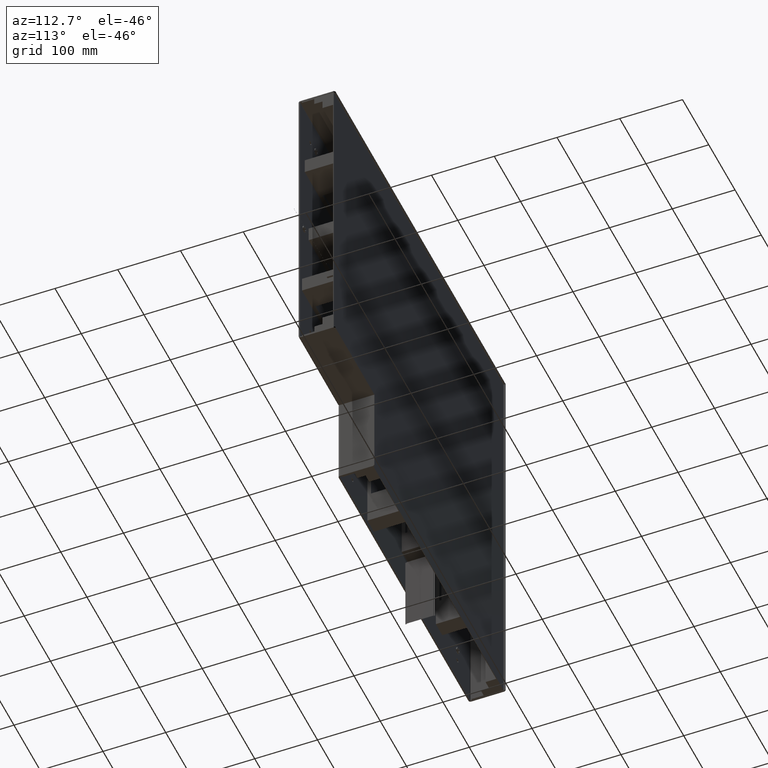
[diagram: clean part render]
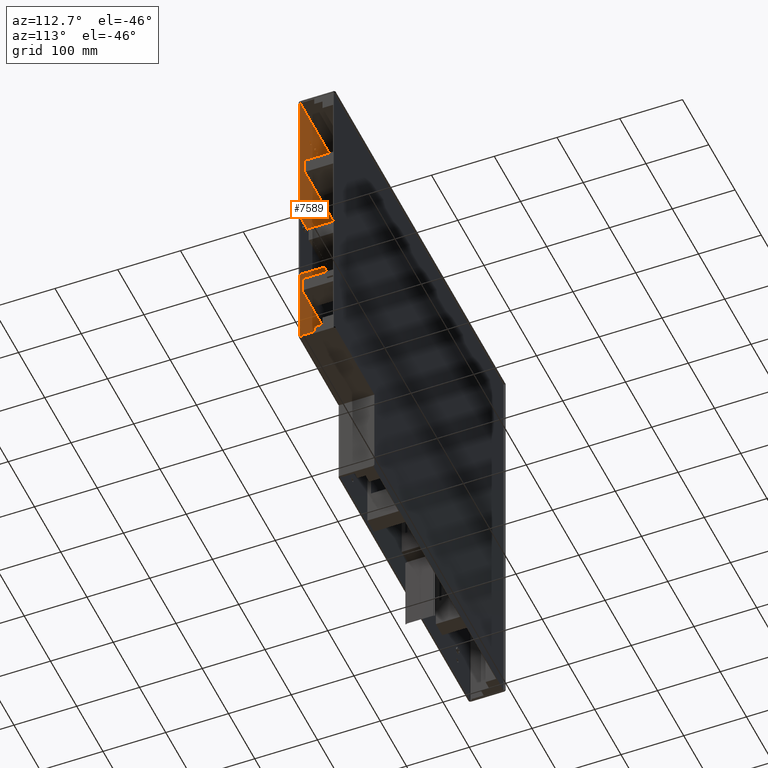
[diagram: same view with one face highlighted and labeled with its STEP entity id]
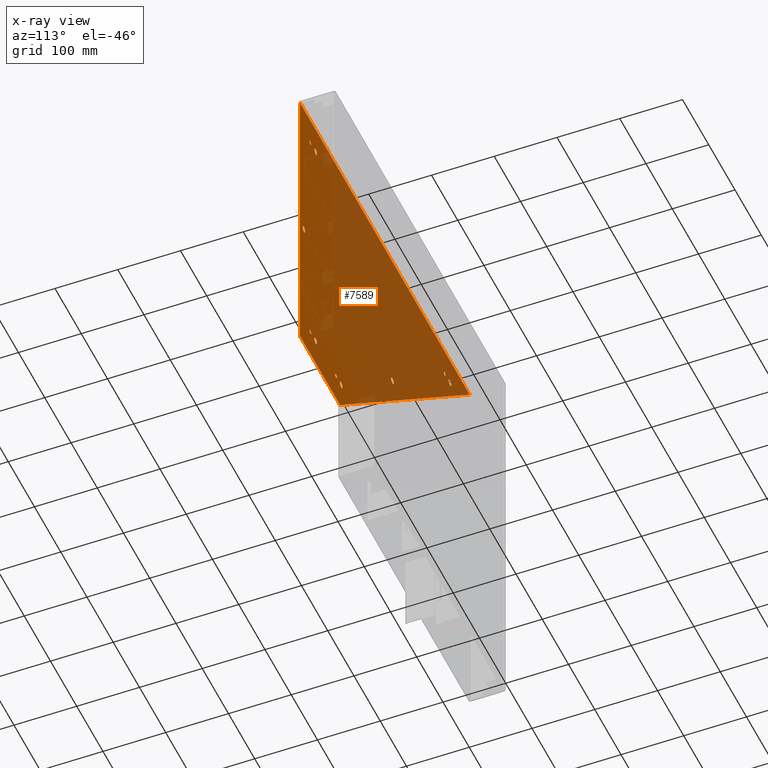
[diagram: x-ray of the same camera — body ghosted, the highlighted face saturated]
A machine part, auxiliary view. The second image highlights one B-rep face of the part: STEP entity #7589.
The next image is the same camera in x-ray: the body ghosted, the highlighted face saturated — about 69% of this face is hidden behind the body in this view.
In plain terms, the highlighted planar face has unit normal (0, -1, 0).
Its self-contained STEP definition (entity closure, byte-faithful):
#5192=DIRECTION('',(0.E0,0.E0,1.E0));
#5193=VECTOR('',#5192,6.47E2);
#5194=CARTESIAN_POINT('',(2.47E2,2.E0,0.E0));
#5195=LINE('',#5194,#5193);
#5451=DIRECTION('',(-1.E0,0.E0,0.E0));
#5452=VECTOR('',#5451,4.94E2);
#5453=CARTESIAN_POINT('',(2.47E2,2.E0,0.E0));
#5454=LINE('',#5453,#5452);
#5479=DIRECTION('',(7.071067811865E-1,0.E0,7.071067811865E-1));
#5480=VECTOR('',#5479,6.986214998123E2);
#5481=CARTESIAN_POINT('',(-2.47E2,2.E0,1.53E2));
#5482=LINE('',#5481,#5480);
#5486=DIRECTION('',(0.E0,0.E0,1.E0));
#5487=VECTOR('',#5486,3.E0);
#5488=CARTESIAN_POINT('',(-2.47E2,2.E0,1.5E2));
#5489=LINE('',#5488,#5487);
#5493=CARTESIAN_POINT('',(2.E2,2.E0,6.E1));
#5494=DIRECTION('',(0.E0,-1.E0,0.E0));
#5495=DIRECTION('',(2.054153971104E-9,0.E0,-1.E0));
#5496=AXIS2_PLACEMENT_3D('',#5493,#5494,#5495);
#5501=CARTESIAN_POINT('',(2.E2,2.E0,6.E1));
#5502=DIRECTION('',(0.E0,-1.E0,0.E0));
#5503=DIRECTION('',(-2.054153971104E-9,0.E0,1.E0));
#5504=AXIS2_PLACEMENT_3D('',#5501,#5502,#5503);
#5509=CARTESIAN_POINT('',(-7.E0,2.E0,1.5E1));
#5510=DIRECTION('',(0.E0,-1.E0,0.E0));
#5511=DIRECTION('',(2.054154493561E-9,0.E0,-1.E0));
#5512=AXIS2_PLACEMENT_3D('',#5509,#5510,#5511);
#5517=CARTESIAN_POINT('',(-7.E0,2.E0,1.5E1));
#5518=DIRECTION('',(0.E0,-1.E0,0.E0));
#5519=DIRECTION('',(-2.054154667714E-9,0.E0,1.E0));
#5520=AXIS2_PLACEMENT_3D('',#5517,#5518,#5519);
#5525=CARTESIAN_POINT('',(-2.E2,2.E0,6.E1));
#5526=DIRECTION('',(0.E0,-1.E0,0.E0));
#5527=DIRECTION('',(1.E0,0.E0,2.054155364325E-9));
#5528=AXIS2_PLACEMENT_3D('',#5525,#5526,#5527);
#5533=CARTESIAN_POINT('',(-2.E2,2.E0,6.E1));
#5534=DIRECTION('',(0.E0,-1.E0,0.E0));
#5535=DIRECTION('',(-1.E0,0.E0,-2.054155364325E-9));
#5536=AXIS2_PLACEMENT_3D('',#5533,#5534,#5535);
#5541=CARTESIAN_POINT('',(-2.E2,2.E0,1.575735931288E2));
#5542=DIRECTION('',(0.E0,-1.E0,0.E0));
#5543=DIRECTION('',(1.E0,0.E0,2.054153971104E-9));
#5544=AXIS2_PLACEMENT_3D('',#5541,#5542,#5543);
#5549=CARTESIAN_POINT('',(-2.E2,2.E0,1.575735931288E2));
#5550=DIRECTION('',(0.E0,-1.E0,0.E0));
#5551=DIRECTION('',(-1.E0,0.E0,-2.054148398219E-9));
#5552=AXIS2_PLACEMENT_3D('',#5549,#5550,#5551);
#5557=CARTESIAN_POINT('',(-5.E0,2.E0,3.525735931288E2));
#5558=DIRECTION('',(0.E0,-1.E0,0.E0));
#5559=DIRECTION('',(1.E0,0.E0,2.054165116872E-9));
#5560=AXIS2_PLACEMENT_3D('',#5557,#5558,#5559);
#5565=CARTESIAN_POINT('',(-5.E0,2.E0,3.525735931288E2));
#5566=DIRECTION('',(0.E0,-1.E0,0.E0));
#5567=DIRECTION('',(-1.E0,0.E0,-2.054153971104E-9));
#5568=AXIS2_PLACEMENT_3D('',#5565,#5566,#5567);
#5573=CARTESIAN_POINT('',(2.E2,2.E0,5.717157287525E2));
#5574=DIRECTION('',(0.E0,-1.E0,0.E0));
#5575=DIRECTION('',(1.E0,0.E0,2.054142825335E-9));
#5576=AXIS2_PLACEMENT_3D('',#5573,#5574,#5575);
#5581=CARTESIAN_POINT('',(2.E2,2.E0,5.717157287525E2));
#5582=DIRECTION('',(0.E0,-1.E0,0.E0));
#5583=DIRECTION('',(-1.E0,0.E0,-2.054142825335E-9));
#5584=AXIS2_PLACEMENT_3D('',#5581,#5582,#5583);
#5589=CARTESIAN_POINT('',(-2.E2,2.E0,1.375735931288E2));
#5590=DIRECTION('',(0.E0,1.E0,0.E0));
#5591=DIRECTION('',(0.E0,0.E0,1.E0));
#5592=AXIS2_PLACEMENT_3D('',#5589,#5590,#5591);
#5597=CARTESIAN_POINT('',(-2.E2,2.E0,1.375735931288E2));
#5598=DIRECTION('',(0.E0,1.E0,0.E0));
#5599=DIRECTION('',(0.E0,0.E0,-1.E0));
#5600=AXIS2_PLACEMENT_3D('',#5597,#5598,#5599);
#5605=CARTESIAN_POINT('',(-2.E2,2.E0,4.E1));
#5606=DIRECTION('',(0.E0,1.E0,0.E0));
#5607=DIRECTION('',(0.E0,0.E0,1.E0));
#5608=AXIS2_PLACEMENT_3D('',#5605,#5606,#5607);
#5613=CARTESIAN_POINT('',(-2.E2,2.E0,4.E1));
#5614=DIRECTION('',(0.E0,1.E0,0.E0));
#5615=DIRECTION('',(0.E0,0.E0,-1.E0));
#5616=AXIS2_PLACEMENT_3D('',#5613,#5614,#5615);
#5621=CARTESIAN_POINT('',(2.E2,2.E0,4.E1));
#5622=DIRECTION('',(0.E0,1.E0,0.E0));
#5623=DIRECTION('',(0.E0,0.E0,1.E0));
#5624=AXIS2_PLACEMENT_3D('',#5621,#5622,#5623);
#5629=CARTESIAN_POINT('',(2.E2,2.E0,4.E1));
#5630=DIRECTION('',(0.E0,1.E0,0.E0));
#5631=DIRECTION('',(0.E0,0.E0,-1.E0));
#5632=AXIS2_PLACEMENT_3D('',#5629,#5630,#5631);
#5637=CARTESIAN_POINT('',(2.E2,2.E0,5.517157287525E2));
#5638=DIRECTION('',(0.E0,1.E0,0.E0));
#5639=DIRECTION('',(0.E0,0.E0,1.E0));
#5640=AXIS2_PLACEMENT_3D('',#5637,#5638,#5639);
#5645=CARTESIAN_POINT('',(2.E2,2.E0,5.517157287525E2));
#5646=DIRECTION('',(0.E0,1.E0,0.E0));
#5647=DIRECTION('',(0.E0,0.E0,-1.E0));
#5648=AXIS2_PLACEMENT_3D('',#5645,#5646,#5647);
#5653=CARTESIAN_POINT('',(-2.E2,2.E0,9.3E1));
#5654=DIRECTION('',(0.E0,1.E0,0.E0));
#5655=DIRECTION('',(0.E0,0.E0,-1.E0));
#5656=AXIS2_PLACEMENT_3D('',#5653,#5654,#5655);
#5661=CARTESIAN_POINT('',(-2.E2,2.E0,9.3E1));
#5662=DIRECTION('',(0.E0,1.E0,0.E0));
#5663=DIRECTION('',(0.E0,0.E0,1.E0));
#5664=AXIS2_PLACEMENT_3D('',#5661,#5662,#5663);
#5669=CARTESIAN_POINT('',(-2.5E1,2.E0,3.255025253169E2));
#5670=DIRECTION('',(0.E0,1.E0,0.E0));
#5671=DIRECTION('',(0.E0,0.E0,-1.E0));
#5672=AXIS2_PLACEMENT_3D('',#5669,#5670,#5671);
#5677=CARTESIAN_POINT('',(-2.5E1,2.E0,3.255025253169E2));
#5678=DIRECTION('',(0.E0,1.E0,0.E0));
#5679=DIRECTION('',(0.E0,0.E0,1.E0));
#5680=AXIS2_PLACEMENT_3D('',#5677,#5678,#5679);
#5685=CARTESIAN_POINT('',(2.E2,2.E0,5.13E2));
#5686=DIRECTION('',(0.E0,1.E0,0.E0));
#5687=DIRECTION('',(0.E0,0.E0,-1.E0));
#5688=AXIS2_PLACEMENT_3D('',#5685,#5686,#5687);
#5693=CARTESIAN_POINT('',(2.E2,2.E0,5.13E2));
#5694=DIRECTION('',(0.E0,1.E0,0.E0));
#5695=DIRECTION('',(0.E0,0.E0,1.E0));
#5696=AXIS2_PLACEMENT_3D('',#5693,#5694,#5695);
#5701=CARTESIAN_POINT('',(2.E2,2.E0,9.3E1));
#5702=DIRECTION('',(0.E0,1.E0,0.E0));
#5703=DIRECTION('',(0.E0,0.E0,-1.E0));
#5704=AXIS2_PLACEMENT_3D('',#5701,#5702,#5703);
#5709=CARTESIAN_POINT('',(2.E2,2.E0,9.3E1));
#5710=DIRECTION('',(0.E0,1.E0,0.E0));
#5711=DIRECTION('',(0.E0,0.E0,1.E0));
#5712=AXIS2_PLACEMENT_3D('',#5709,#5710,#5711);
#5777=DIRECTION('',(0.E0,0.E0,1.E0));
#5778=VECTOR('',#5777,1.5E2);
#5779=CARTESIAN_POINT('',(-2.47E2,2.E0,0.E0));
#5780=LINE('',#5779,#5778);
#6881=CARTESIAN_POINT('',(2.47E2,2.E0,0.E0));
#6882=CARTESIAN_POINT('',(-2.47E2,2.E0,0.E0));
#6883=VERTEX_POINT('',#6881);
#6884=VERTEX_POINT('',#6882);
#6909=CARTESIAN_POINT('',(2.000000000105E2,2.E0,5.49E1));
#6910=CARTESIAN_POINT('',(1.999999999895E2,2.E0,6.51E1));
#6911=VERTEX_POINT('',#6909);
#6912=VERTEX_POINT('',#6910);
#6925=CARTESIAN_POINT('',(-6.999999989524E0,2.E0,9.9E0));
#6926=CARTESIAN_POINT('',(-7.000000010476E0,2.E0,2.01E1));
#6927=VERTEX_POINT('',#6925);
#6928=VERTEX_POINT('',#6926);
#6933=CARTESIAN_POINT('',(-2.47E2,2.E0,1.53E2));
#6934=CARTESIAN_POINT('',(2.47E2,2.E0,6.47E2));
#6935=VERTEX_POINT('',#6933);
#6936=VERTEX_POINT('',#6934);
#6965=CARTESIAN_POINT('',(-1.949E2,2.E0,6.000000001048E1));
#6966=CARTESIAN_POINT('',(-2.051E2,2.E0,5.999999998952E1));
#6967=VERTEX_POINT('',#6965);
#6968=VERTEX_POINT('',#6966);
#6989=CARTESIAN_POINT('',(-1.949E2,2.E0,1.575735931393E2));
#6990=CARTESIAN_POINT('',(-2.051E2,2.E0,1.575735931183E2));
#6991=VERTEX_POINT('',#6989);
#6992=VERTEX_POINT('',#6990);
#7013=CARTESIAN_POINT('',(1.E-1,2.E0,3.525735931393E2));
#7014=CARTESIAN_POINT('',(-1.01E1,2.E0,3.525735931183E2));
#7015=VERTEX_POINT('',#7013);
#7016=VERTEX_POINT('',#7014);
#7033=CARTESIAN_POINT('',(2.051E2,2.E0,5.717157287630E2));
#7034=CARTESIAN_POINT('',(1.949E2,2.E0,5.717157287421E2));
#7035=VERTEX_POINT('',#7033);
#7036=VERTEX_POINT('',#7034);
#7043=CARTESIAN_POINT('',(-2.47E2,2.E0,1.5E2));
#7044=VERTEX_POINT('',#7043);
#7077=CARTESIAN_POINT('',(2.E2,2.E0,5.549657287525E2));
#7078=CARTESIAN_POINT('',(2.E2,2.E0,5.484657287525E2));
#7079=VERTEX_POINT('',#7077);
#7080=VERTEX_POINT('',#7078);
#7081=CARTESIAN_POINT('',(2.E2,2.E0,4.325E1));
#7082=CARTESIAN_POINT('',(2.E2,2.E0,3.675E1));
#7083=VERTEX_POINT('',#7081);
#7084=VERTEX_POINT('',#7082);
#7085=CARTESIAN_POINT('',(-2.E2,2.E0,4.325E1));
#7086=CARTESIAN_POINT('',(-2.E2,2.E0,3.675E1));
#7087=VERTEX_POINT('',#7085);
#7088=VERTEX_POINT('',#7086);
#7089=CARTESIAN_POINT('',(-2.E2,2.E0,1.408235931288E2));
#7090=CARTESIAN_POINT('',(-2.E2,2.E0,1.343235931288E2));
#7091=VERTEX_POINT('',#7089);
#7092=VERTEX_POINT('',#7090);
#7133=CARTESIAN_POINT('',(2.E2,2.E0,9.295E1));
#7134=CARTESIAN_POINT('',(2.E2,2.E0,9.305E1));
#7135=VERTEX_POINT('',#7133);
#7136=VERTEX_POINT('',#7134);
#7137=CARTESIAN_POINT('',(2.E2,2.E0,5.1295E2));
#7138=CARTESIAN_POINT('',(2.E2,2.E0,5.1305E2));
#7139=VERTEX_POINT('',#7137);
#7140=VERTEX_POINT('',#7138);
#7141=CARTESIAN_POINT('',(-2.5E1,2.E0,3.254525253169E2));
#7142=CARTESIAN_POINT('',(-2.5E1,2.E0,3.255525253169E2));
#7143=VERTEX_POINT('',#7141);
#7144=VERTEX_POINT('',#7142);
#7145=CARTESIAN_POINT('',(-2.E2,2.E0,9.295E1));
#7146=CARTESIAN_POINT('',(-2.E2,2.E0,9.305E1));
#7147=VERTEX_POINT('',#7145);
#7148=VERTEX_POINT('',#7146);
#7491=CARTESIAN_POINT('',(0.E0,2.E0,0.E0));
#7492=DIRECTION('',(0.E0,-1.E0,0.E0));
#7493=DIRECTION('',(1.E0,0.E0,0.E0));
#7494=AXIS2_PLACEMENT_3D('',#7491,#7492,#7493);
#7495=PLANE('',#7494);
#7496=ORIENTED_EDGE('',*,*,#7371,.F.);
#7498=ORIENTED_EDGE('',*,*,#7497,.F.);
#7500=ORIENTED_EDGE('',*,*,#7499,.F.);
#7501=ORIENTED_EDGE('',*,*,#7482,.F.);
#7502=ORIENTED_EDGE('',*,*,#7342,.T.);
#7503=EDGE_LOOP('',(#7496,#7498,#7500,#7501,#7502));
#7504=FACE_OUTER_BOUND('',#7503,.F.);
#7506=ORIENTED_EDGE('',*,*,#7505,.F.);
#7508=ORIENTED_EDGE('',*,*,#7507,.F.);
#7509=EDGE_LOOP('',(#7506,#7508));
#7510=FACE_BOUND('',#7509,.F.);
#7512=ORIENTED_EDGE('',*,*,#7511,.F.);
#7514=ORIENTED_EDGE('',*,*,#7513,.F.);
#7515=EDGE_LOOP('',(#7512,#7514));
#7516=FACE_BOUND('',#7515,.F.);
#7518=ORIENTED_EDGE('',*,*,#7517,.F.);
#7520=ORIENTED_EDGE('',*,*,#7519,.F.);
#7521=EDGE_LOOP('',(#7518,#7520));
#7522=FACE_BOUND('',#7521,.F.);
#7524=ORIENTED_EDGE('',*,*,#7523,.F.);
#7526=ORIENTED_EDGE('',*,*,#7525,.F.);
#7527=EDGE_LOOP('',(#7524,#7526));
#7528=FACE_BOUND('',#7527,.F.);
#7530=ORIENTED_EDGE('',*,*,#7529,.F.);
#7532=ORIENTED_EDGE('',*,*,#7531,.F.);
#7533=EDGE_LOOP('',(#7530,#7532));
#7534=FACE_BOUND('',#7533,.F.);
#7536=ORIENTED_EDGE('',*,*,#7535,.F.);
#7538=ORIENTED_EDGE('',*,*,#7537,.F.);
#7539=EDGE_LOOP('',(#7536,#7538));
#7540=FACE_BOUND('',#7539,.F.);
#7542=ORIENTED_EDGE('',*,*,#7541,.T.);
#7544=ORIENTED_EDGE('',*,*,#7543,.T.);
#7545=EDGE_LOOP('',(#7542,#7544));
#7546=FACE_BOUND('',#7545,.F.);
#7548=ORIENTED_EDGE('',*,*,#7547,.T.);
#7550=ORIENTED_EDGE('',*,*,#7549,.T.);
#7551=EDGE_LOOP('',(#7548,#7550));
#7552=FACE_BOUND('',#7551,.F.);
#7554=ORIENTED_EDGE('',*,*,#7553,.T.);
#7556=ORIENTED_EDGE('',*,*,#7555,.T.);
#7557=EDGE_LOOP('',(#7554,#7556));
#7558=FACE_BOUND('',#7557,.F.);
#7560=ORIENTED_EDGE('',*,*,#7559,.T.);
#7562=ORIENTED_EDGE('',*,*,#7561,.T.);
#7563=EDGE_LOOP('',(#7560,#7562));
#7564=FACE_BOUND('',#7563,.F.);
#7566=ORIENTED_EDGE('',*,*,#7565,.T.);
#7568=ORIENTED_EDGE('',*,*,#7567,.T.);
#7569=EDGE_LOOP('',(#7566,#7568));
#7570=FACE_BOUND('',#7569,.F.);
#7572=ORIENTED_EDGE('',*,*,#7571,.T.);
#7574=ORIENTED_EDGE('',*,*,#7573,.T.);
#7575=EDGE_LOOP('',(#7572,#7574));
#7576=FACE_BOUND('',#7575,.F.);
#7578=ORIENTED_EDGE('',*,*,#7577,.T.);
#7580=ORIENTED_EDGE('',*,*,#7579,.T.);
#7581=EDGE_LOOP('',(#7578,#7580));
#7582=FACE_BOUND('',#7581,.F.);
#7584=ORIENTED_EDGE('',*,*,#7583,.T.);
#7586=ORIENTED_EDGE('',*,*,#7585,.T.);
#7587=EDGE_LOOP('',(#7584,#7586));
#7588=FACE_BOUND('',#7587,.F.);
#5497=CIRCLE('',#5496,5.1E0);
#5505=CIRCLE('',#5504,5.1E0);
#5513=CIRCLE('',#5512,5.1E0);
#5521=CIRCLE('',#5520,5.1E0);
#5529=CIRCLE('',#5528,5.1E0);
#5537=CIRCLE('',#5536,5.1E0);
#5545=CIRCLE('',#5544,5.1E0);
#5553=CIRCLE('',#5552,5.1E0);
#5561=CIRCLE('',#5560,5.1E0);
#5569=CIRCLE('',#5568,5.1E0);
#5577=CIRCLE('',#5576,5.1E0);
#5585=CIRCLE('',#5584,5.1E0);
#5593=CIRCLE('',#5592,3.25E0);
#5601=CIRCLE('',#5600,3.25E0);
#5609=CIRCLE('',#5608,3.25E0);
#5617=CIRCLE('',#5616,3.25E0);
#5625=CIRCLE('',#5624,3.25E0);
#5633=CIRCLE('',#5632,3.25E0);
#5641=CIRCLE('',#5640,3.25E0);
#5649=CIRCLE('',#5648,3.25E0);
#5657=CIRCLE('',#5656,5.E-2);
#5665=CIRCLE('',#5664,5.E-2);
#5673=CIRCLE('',#5672,5.E-2);
#5681=CIRCLE('',#5680,5.E-2);
#5689=CIRCLE('',#5688,5.E-2);
#5697=CIRCLE('',#5696,5.E-2);
#5705=CIRCLE('',#5704,5.E-2);
#5713=CIRCLE('',#5712,5.E-2);
#7342=EDGE_CURVE('',#6883,#6936,#5195,.T.);
#7371=EDGE_CURVE('',#6935,#6936,#5482,.T.);
#7482=EDGE_CURVE('',#6883,#6884,#5454,.T.);
#7497=EDGE_CURVE('',#7044,#6935,#5489,.T.);
#7499=EDGE_CURVE('',#6884,#7044,#5780,.T.);
#7505=EDGE_CURVE('',#6911,#6912,#5497,.T.);
#7507=EDGE_CURVE('',#6912,#6911,#5505,.T.);
#7511=EDGE_CURVE('',#6927,#6928,#5513,.T.);
#7513=EDGE_CURVE('',#6928,#6927,#5521,.T.);
#7517=EDGE_CURVE('',#6967,#6968,#5529,.T.);
#7519=EDGE_CURVE('',#6968,#6967,#5537,.T.);
#7523=EDGE_CURVE('',#6991,#6992,#5545,.T.);
#7525=EDGE_CURVE('',#6992,#6991,#5553,.T.);
#7529=EDGE_CURVE('',#7015,#7016,#5561,.T.);
#7531=EDGE_CURVE('',#7016,#7015,#5569,.T.);
#7535=EDGE_CURVE('',#7035,#7036,#5577,.T.);
#7537=EDGE_CURVE('',#7036,#7035,#5585,.T.);
#7541=EDGE_CURVE('',#7091,#7092,#5593,.T.);
#7543=EDGE_CURVE('',#7092,#7091,#5601,.T.);
#7547=EDGE_CURVE('',#7087,#7088,#5609,.T.);
#7549=EDGE_CURVE('',#7088,#7087,#5617,.T.);
#7553=EDGE_CURVE('',#7083,#7084,#5625,.T.);
#7555=EDGE_CURVE('',#7084,#7083,#5633,.T.);
#7559=EDGE_CURVE('',#7079,#7080,#5641,.T.);
#7561=EDGE_CURVE('',#7080,#7079,#5649,.T.);
#7565=EDGE_CURVE('',#7147,#7148,#5657,.T.);
#7567=EDGE_CURVE('',#7148,#7147,#5665,.T.);
#7571=EDGE_CURVE('',#7143,#7144,#5673,.T.);
#7573=EDGE_CURVE('',#7144,#7143,#5681,.T.);
#7577=EDGE_CURVE('',#7139,#7140,#5689,.T.);
#7579=EDGE_CURVE('',#7140,#7139,#5697,.T.);
#7583=EDGE_CURVE('',#7135,#7136,#5705,.T.);
#7585=EDGE_CURVE('',#7136,#7135,#5713,.T.);
#7589=ADVANCED_FACE('',(#7504,#7510,#7516,#7522,#7528,#7534,#7540,#7546,#7552,
#7558,#7564,#7570,#7576,#7582,#7588),#7495,.F.);